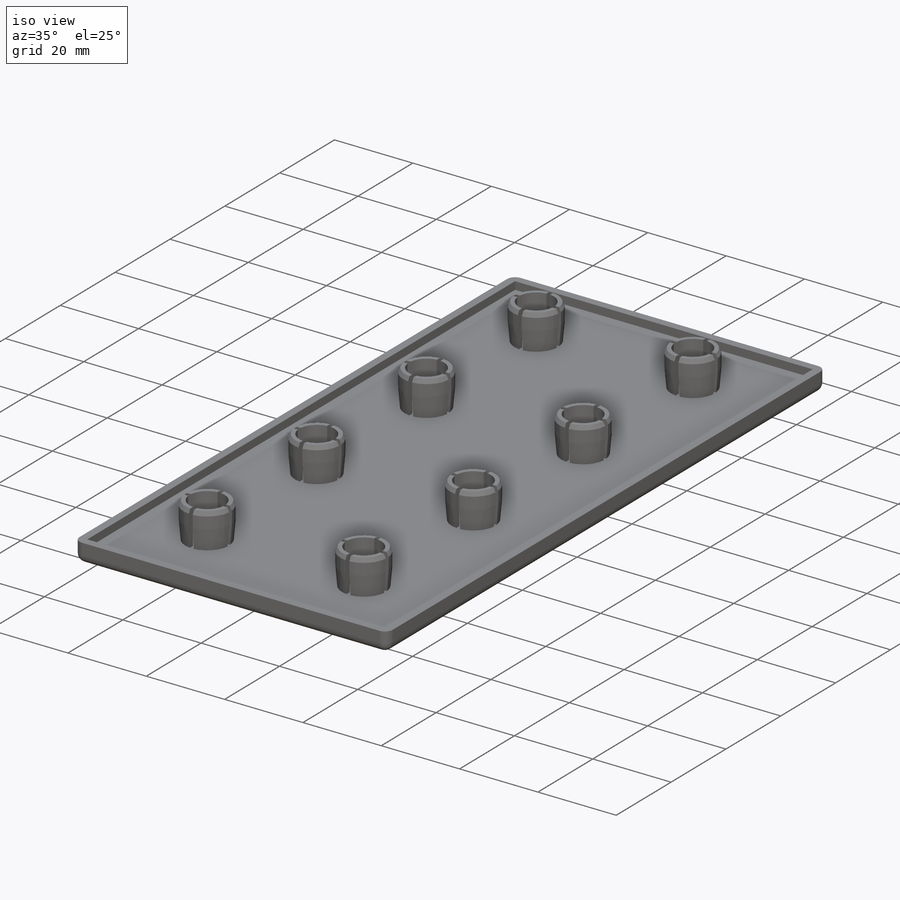
[diagram: iso view]
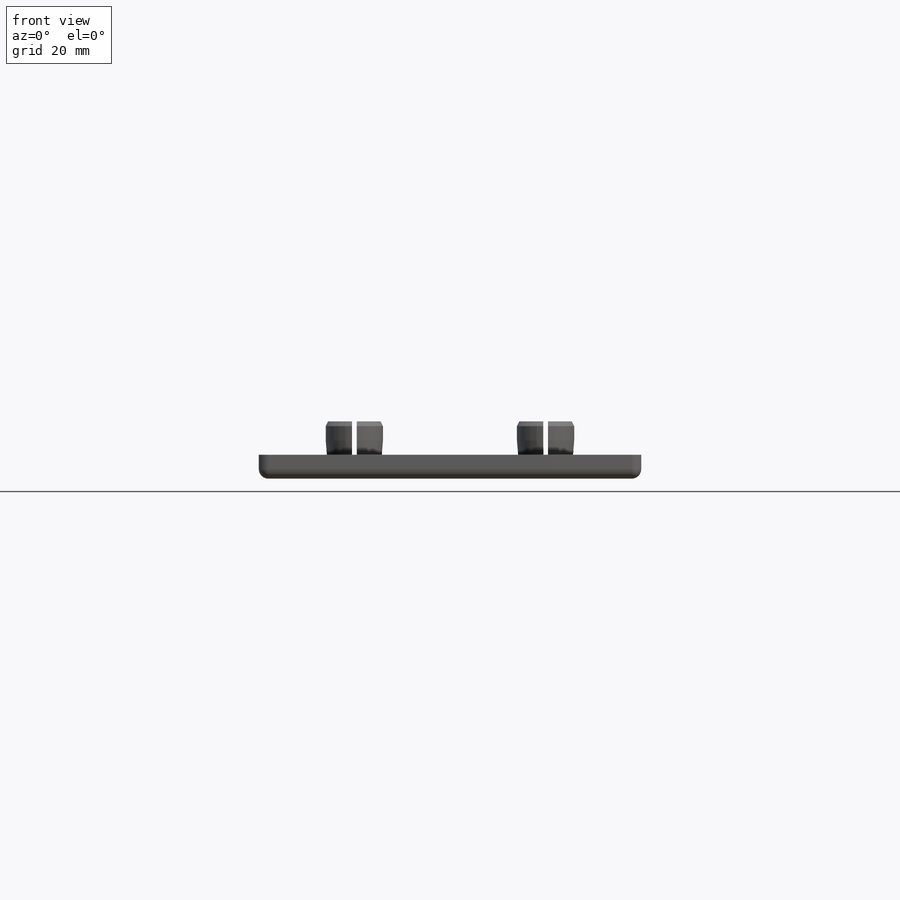
[diagram: front view]
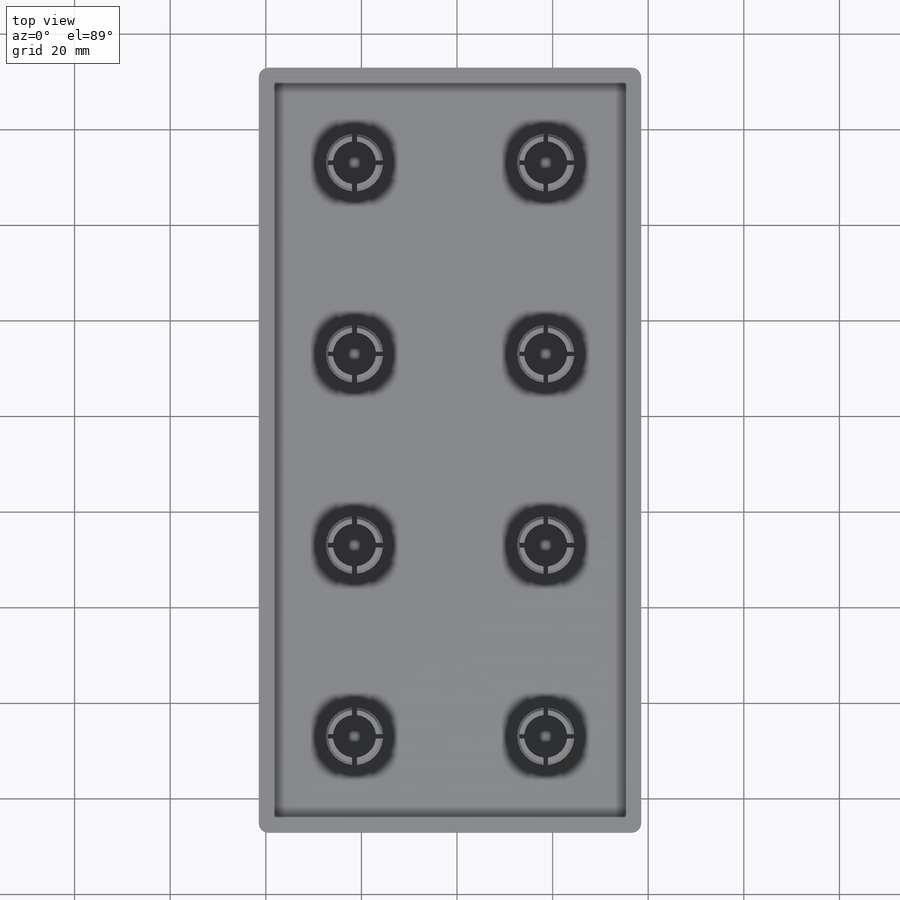
[diagram: top view]
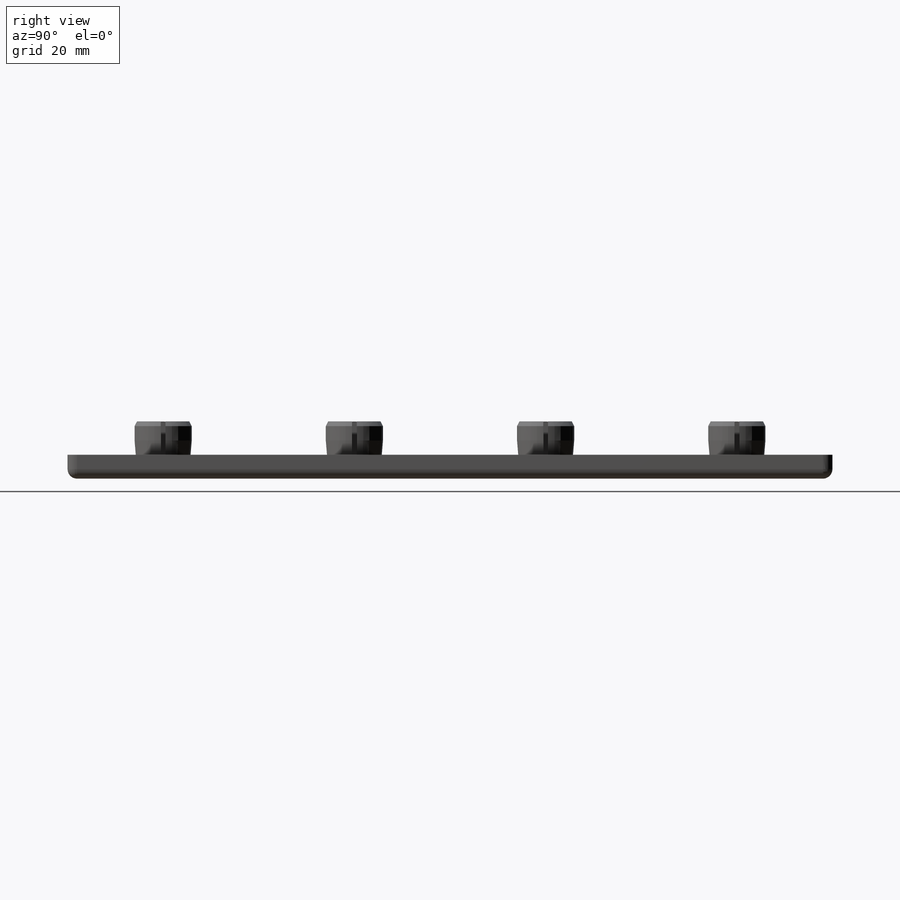
[diagram: right view]
SOLIDWORKS PART (.sldprt)
format: sldprt  version: not decoded by parser v0  size: 1,116,672 bytes
history: native  units: mm
features: sketch x5, plane x4, cut_extrude x3, material x1, extrude x1, fillet x1, revolve x1, chamfer x1, pattern_linear x1 (+12 scaffold rows collapsed)
feature tree (30):
  scaffold x12  (default folders/planes/origin — collapsed)
  material  "材质 <未指定>"
  plane  "前视基准面"
  plane  "上视基准面"
  plane  "右视基准面"
  sketch  "草图1"  dims[c1.D1=100.0mm c1.D2=100.0mm c2.D1=80.0mm]
  extrude  "拉伸1"  Depth=5mm
  sketch  "草图2"  dims[D1=2.0mm D2=2.0mm D3=2.0mm D4=2.0mm]
  cut_extrude  "切除-拉伸1"  Depth=2mm
  fillet  "圆角1"  Radius=2mm
  plane  "基准面1"  Offset=20mm
  sketch  "草图3"  dims[D1=20.0mm D2=4.5mm D3=1.5mm D4=10.0mm D5=1.0mm D6=4.0mm]
  revolve  "旋转1"  Angle=360deg
  sketch  "草图4"  dims[D1=1.0mm D2=0.5mm D3=20.0mm D4=10.0mm]
  cut_extrude  "切除-拉伸2"  Depth=9mm
  sketch  "草图5"  dims[c1.D1=1.0mm c1.D2=0.5mm c1.D3=10.0mm c1.D4=20.0mm c1.D5=25.5mm c1.D6=11.0mm c2.D5=20.0mm]
  cut_extrude  "切除-拉伸3"  Depth=9mm
  chamfer  "倒角1"  Distance=1mm Angle=27deg
  pattern_linear  "阵列(线性)1"  Count1=4 Count2=2 Spacing1=40mm Spacing2=40mm
decode coverage: 13 of 13 modeling features carry decoded parameters
note: suppression state not decoded; provenance and decode notes live in map.json
